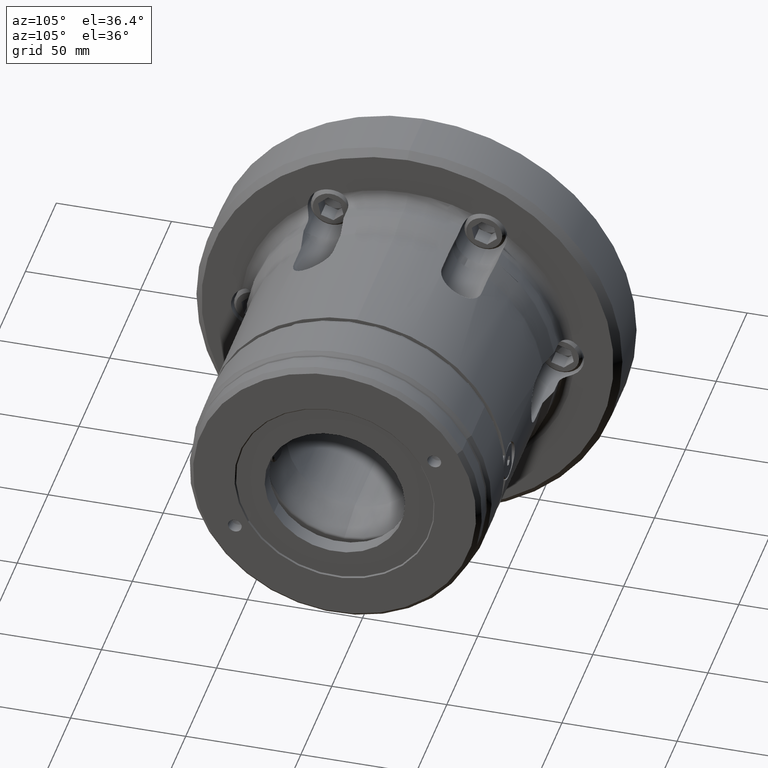
[diagram: clean part render]
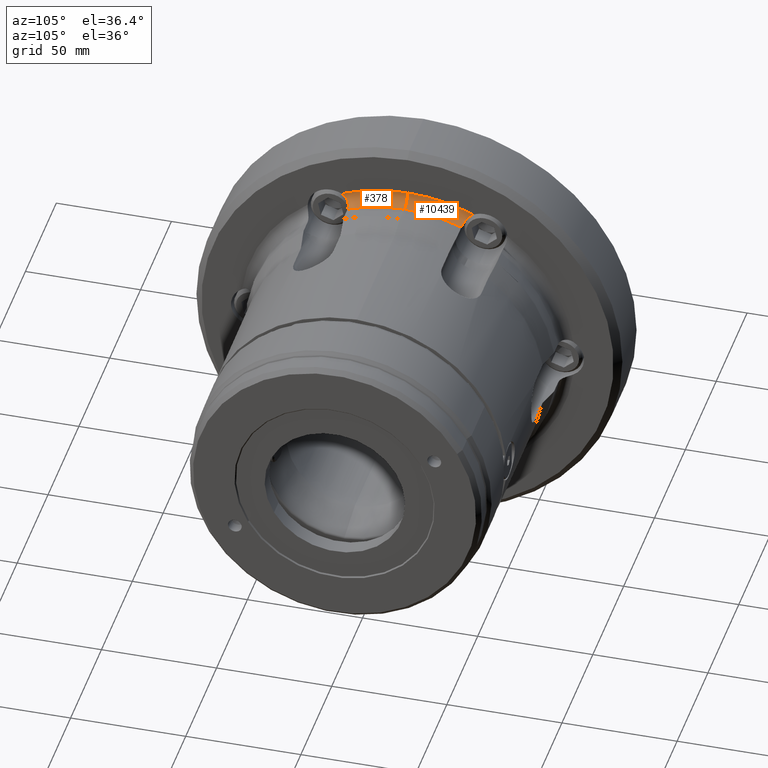
[diagram: same view with one multi-face feature highlighted, each face labeled with its STEP entity id]
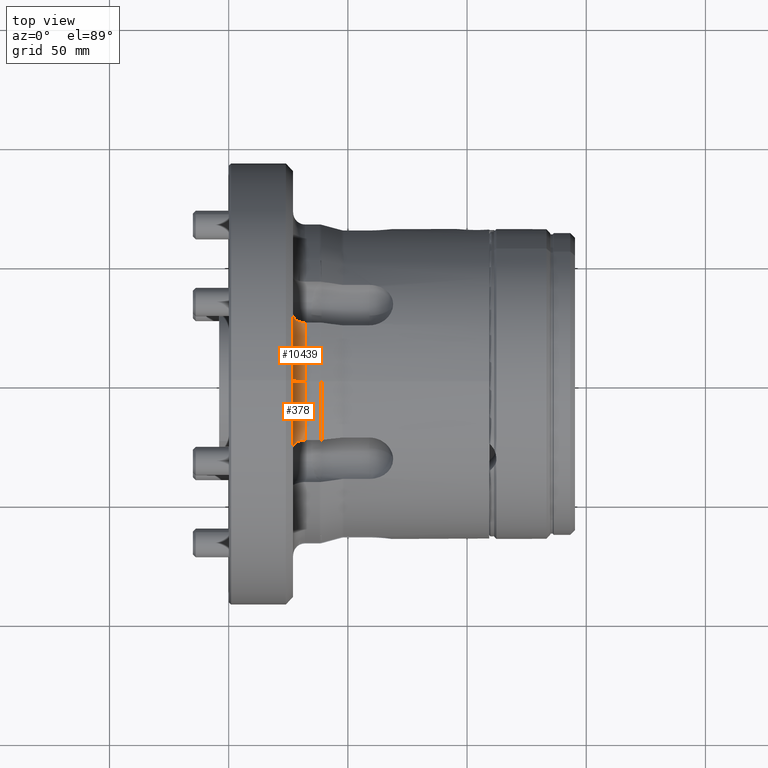
[diagram: same view with one multi-face feature highlighted, each face labeled with its STEP entity id]
A machine part, auxiliary view. The highlighted faces form ONE feature: a constant-radius fillet chain: 2 tangent blend faces with common blend radius 5 mm. The faces share edges in the B-rep.
A second angle (top view) of the same feature is appended — it is thin or edge-on in the first view.
Their STEP definitions:
[1] entity #378 (Torus):
#265 = CARTESIAN_POINT ( 'NONE',  ( 28.20177076734847400, -25.75867995182601400, 64.27456560706507100 ) ) ;
#378 = ADVANCED_FACE ( 'NONE', ( #7555 ), #10335, .F. ) ;
#1005 = AXIS2_PLACEMENT_3D ( 'NONE', #3114, #3071, #4931 ) ;
#1037 = CARTESIAN_POINT ( 'NONE',  ( 32.00000000000000000, 0.0000000000000000000, 0.0000000000000000000 ) ) ;
#1133 = CARTESIAN_POINT ( 'NONE',  ( 31.30454472536416000, -24.73593842011673500, 62.84358010782488400 ) ) ;
#1213 = CARTESIAN_POINT ( 'NONE',  ( 27.89509054676364000, -26.03968464414744600, 64.58882078295175700 ) ) ;
#1327 = DIRECTION ( 'NONE',  ( 0.0000000000000000000, -1.000000000000000000, 0.0000000000000000000 ) ) ;
#1393 = ORIENTED_EDGE ( 'NONE', *, *, #9867, .F. ) ;
#1977 = DIRECTION ( 'NONE',  ( 0.0000000000000000000, 0.0000000000000000000, 1.000000000000000000 ) ) ;
#2133 = CARTESIAN_POINT ( 'NONE',  ( 32.00000000000000000, -24.71746397891518000, 62.81159904389500800 ) ) ;
#2172 = CARTESIAN_POINT ( 'NONE',  ( 27.54791455152169600, -26.46399411699826100, 65.02169032671429200 ) ) ;
#2588 = ORIENTED_EDGE ( 'NONE', *, *, #5707, .F. ) ;
#3071 = DIRECTION ( 'NONE',  ( -1.000000000000000000, -0.0000000000000000000, -0.0000000000000000000 ) ) ;
#3075 = CARTESIAN_POINT ( 'NONE',  ( 30.29125802549608800, -24.86781073366849200, 63.06227732090958000 ) ) ;
#3114 = CARTESIAN_POINT ( 'NONE',  ( 32.00000000000000000, 0.0000000000000000000, 0.0000000000000000000 ) ) ;
#3117 = CARTESIAN_POINT ( 'NONE',  ( 27.25084032830565000, -27.07971057027833300, 65.55561487537553900 ) ) ;
#3278 = CARTESIAN_POINT ( 'NONE',  ( 27.00000000000000400, 0.0000000000000000000, 0.0000000000000000000 ) ) ;
#3714 = B_SPLINE_CURVE_WITH_KNOTS ( 'NONE', 3,
 ( #2133, #11324, #1133, #8552, #3075, #9494, #3991, #10451, #4894, #11365, #5844, #265, #6741, #1213, #7665, #2172, #8594, #3117, #9538, #4033, #10492, #4934, #11406, #5881 ),
 .UNSPECIFIED., .F., .F.,
 ( 4, 2, 2, 2, 2, 2, 2, 2, 2, 2, 2, 4 ),
 ( 1.971937660582398000E-007, 0.001037991745047884800, 0.002075786296329701300, 0.003113580847611517800, 0.003632478123252418900, 0.004151375398893319100, 0.004670272674534219800, 0.005189169950175121300, 0.006226964501456894900, 0.006745861777097795500, 0.007264759052738694500, 0.008302553604020516600 ),
 .UNSPECIFIED. ) ;
#3754 = VERTEX_POINT ( 'NONE', #12008 ) ;
#3991 = CARTESIAN_POINT ( 'NONE',  ( 29.36045259790385100, -25.11980193021982900, 63.44782431603496100 ) ) ;
#4033 = CARTESIAN_POINT ( 'NONE',  ( 27.12712057540984400, -27.48480516863607200, 65.86502907398787000 ) ) ;
#4178 = DIRECTION ( 'NONE',  ( 0.0000000000000000000, 0.0000000000000000000, 1.000000000000000000 ) ) ;
#4573 = EDGE_LOOP ( 'NONE', ( #6149, #1393, #2588, #11588 ) ) ;
#4660 = AXIS2_PLACEMENT_3D ( 'NONE', #6837, #1327, #7768 ) ;
#4894 = CARTESIAN_POINT ( 'NONE',  ( 28.80462763644668600, -25.36946505673230200, 63.79091625006412900 ) ) ;
#4931 = DIRECTION ( 'NONE',  ( 0.0000000000000000000, 0.0000000000000000000, 1.000000000000000000 ) ) ;
#4934 = CARTESIAN_POINT ( 'NONE',  ( 27.02235733912581500, -28.05118222939613300, 66.25155472628891600 ) ) ;
#5707 = EDGE_CURVE ( 'NONE', #8735, #8711, #3714, .T. ) ;
#5844 = CARTESIAN_POINT ( 'NONE',  ( 28.42904382400623900, -25.59161248456588200, 64.07455227281336400 ) ) ;
#5881 = CARTESIAN_POINT ( 'NONE',  ( 27.00000000000000400, -28.65877936728718800, 66.59522779580609600 ) ) ;
#6149 = ORIENTED_EDGE ( 'NONE', *, *, #10353, .F. ) ;
#6493 = AXIS2_PLACEMENT_3D ( 'NONE', #1037, #7482, #1977 ) ;
#6741 = CARTESIAN_POINT ( 'NONE',  ( 28.09499267393613300, -25.84807050184107900, 64.37762137695349900 ) ) ;
#6837 = CARTESIAN_POINT ( 'NONE',  ( 32.00000000000000000, 0.0000000000000000000, 72.50000000000001400 ) ) ;
#6952 = AXIS2_PLACEMENT_3D ( 'NONE', #3278, #9712, #4178 ) ;
#7180 = CARTESIAN_POINT ( 'NONE',  ( 27.00000000000000400, 0.0000000000000000000, 72.50000000000001400 ) ) ;
#7307 = CIRCLE ( 'NONE', #6952, 72.50000000000001400 ) ;
#7482 = DIRECTION ( 'NONE',  ( -1.000000000000000000, -0.0000000000000000000, -0.0000000000000000000 ) ) ;
#7555 = FACE_OUTER_BOUND ( 'NONE', #4573, .T. ) ;
#7665 = CARTESIAN_POINT ( 'NONE',  ( 27.80167041834776100, -26.14244011050439200, 64.69745412462401600 ) ) ;
#7768 = DIRECTION ( 'NONE',  ( 0.0000000000000000000, 0.0000000000000000000, -1.000000000000000000 ) ) ;
#7822 = EDGE_CURVE ( 'NONE', #8735, #3754, #9818, .T. ) ;
#8306 = CARTESIAN_POINT ( 'NONE',  ( 27.00000000000000400, -28.65877936728718800, 66.59522779580609600 ) ) ;
#8431 = CIRCLE ( 'NONE', #4660, 5.000000000000004400 ) ;
#8552 = CARTESIAN_POINT ( 'NONE',  ( 30.62740125614273600, -24.81054725087464500, 62.96802838615241200 ) ) ;
#8594 = CARTESIAN_POINT ( 'NONE',  ( 27.41160549933610100, -26.69778761338555000, 65.23770325642958300 ) ) ;
#8711 = VERTEX_POINT ( 'NONE', #8306 ) ;
#8735 = VERTEX_POINT ( 'NONE', #11164 ) ;
#9494 = CARTESIAN_POINT ( 'NONE',  ( 29.65883439109900600, -25.02257640546639900, 63.30234297511808000 ) ) ;
#9538 = CARTESIAN_POINT ( 'NONE',  ( 27.20445721305496500, -27.21286829081632800, 65.66101462112169400 ) ) ;
#9712 = DIRECTION ( 'NONE',  ( -1.000000000000000000, -0.0000000000000000000, -0.0000000000000000000 ) ) ;
#9818 = CIRCLE ( 'NONE', #6493, 67.50000000000000000 ) ;
#9867 = EDGE_CURVE ( 'NONE', #8711, #11753, #7307, .T. ) ;
#10335 = TOROIDAL_SURFACE ( 'NONE', #1005, 72.50000000000001400, 5.000000000000000900 ) ;
#10353 = EDGE_CURVE ( 'NONE', #11753, #3754, #8431, .T. ) ;
#10451 = CARTESIAN_POINT ( 'NONE',  ( 28.94015019664581000, -25.30230534107060300, 63.70067937665431400 ) ) ;
#10492 = CARTESIAN_POINT ( 'NONE',  ( 27.09591166367441400, -27.62399491381825800, 65.96403635256999100 ) ) ;
#11164 = CARTESIAN_POINT ( 'NONE',  ( 32.00000000000000000, -24.71746397891518000, 62.81159904389500800 ) ) ;
#11324 = CARTESIAN_POINT ( 'NONE',  ( 31.64914678709825700, -24.71746397891518800, 62.81159904389503600 ) ) ;
#11365 = CARTESIAN_POINT ( 'NONE',  ( 28.54953724307011600, -25.51393651388711000, 63.97759212483183700 ) ) ;
#11406 = CARTESIAN_POINT ( 'NONE',  ( 27.00000000000063900, -28.35073308871080800, 66.43159304231808400 ) ) ;
#11588 = ORIENTED_EDGE ( 'NONE', *, *, #7822, .T. ) ;
#11753 = VERTEX_POINT ( 'NONE', #7180 ) ;
#12008 = CARTESIAN_POINT ( 'NONE',  ( 32.00000000000000000, 0.0000000000000000000, 67.50000000000000000 ) ) ;
[2] entity #10439 (Torus):
#547 = DIRECTION ( 'NONE',  ( 0.0000000000000000000, 0.0000000000000000000, 1.000000000000000000 ) ) ;
#686 = CARTESIAN_POINT ( 'NONE',  ( 27.12045809462630800, 27.48098288024749900, 65.86783920671823000 ) ) ;
#1279 = CARTESIAN_POINT ( 'NONE',  ( 29.65660441016771600, 25.02957947919591000, 63.31172612567542800 ) ) ;
#1327 = DIRECTION ( 'NONE',  ( 0.0000000000000000000, -1.000000000000000000, 0.0000000000000000000 ) ) ;
#1976 = CARTESIAN_POINT ( 'NONE',  ( 28.08062349619659800, 25.84853558816257600, 64.38184889543511200 ) ) ;
#2493 = CARTESIAN_POINT ( 'NONE',  ( 32.00000000000000000, 0.0000000000000000000, 0.0000000000000000000 ) ) ;
#2783 = AXIS2_PLACEMENT_3D ( 'NONE', #5381, #11845, #6315 ) ;
#2884 = CARTESIAN_POINT ( 'NONE',  ( 32.00000000000000000, 24.71746397891649800, 62.81159904389449600 ) ) ;
#3386 = CARTESIAN_POINT ( 'NONE',  ( 28.42363769659155200, 25.59520192339395800, 64.07898977534462400 ) ) ;
#3478 = CARTESIAN_POINT ( 'NONE',  ( 28.80122610272535900, 25.37122720760206500, 63.79325259504639700 ) ) ;
#3628 = B_SPLINE_CURVE_WITH_KNOTS ( 'NONE', 3,
 ( #3834, #7916, #6998, #686, #8338, #4770, #4590, #8869, #1976, #3386, #6914, #3478, #7864, #8636, #11921, #1279, #9932, #4034, #4588, #5749, #5169, #11012 ),
 .UNSPECIFIED., .F., .F.,
 ( 4, 2, 2, 2, 2, 2, 2, 2, 2, 2, 4 ),
 ( 0.02912168559790560100, 0.03015741598139268900, 0.03119314636487978100, 0.03222887674836687200, 0.03326460713185396000, 0.03378247232359750400, 0.03430033751534104800, 0.03481820270708459200, 0.03533606789882813600, 0.03637179828231523700, 0.03740752866580233900 ),
 .UNSPECIFIED. ) ;
#3754 = VERTEX_POINT ( 'NONE', #12008 ) ;
#3834 = CARTESIAN_POINT ( 'NONE',  ( 27.00000000000000400, 28.65877936730302600, 66.59522779581317300 ) ) ;
#4034 = CARTESIAN_POINT ( 'NONE',  ( 30.28873505712023500, 24.86824977827094700, 63.06299942544239900 ) ) ;
#4191 = AXIS2_PLACEMENT_3D ( 'NONE', #9820, #4287, #10751 ) ;
#4272 = CIRCLE ( 'NONE', #2783, 67.50000000000000000 ) ;
#4287 = DIRECTION ( 'NONE',  ( -1.000000000000000000, -0.0000000000000000000, -0.0000000000000000000 ) ) ;
#4567 = ORIENTED_EDGE ( 'NONE', *, *, #8981, .F. ) ;
#4588 = CARTESIAN_POINT ( 'NONE',  ( 30.61753476888021200, 24.81195552910024900, 62.97035232709957600 ) ) ;
#4590 = CARTESIAN_POINT ( 'NONE',  ( 27.54773279642391200, 26.46456799272830900, 65.02215854339328900 ) ) ;
#4660 = AXIS2_PLACEMENT_3D ( 'NONE', #6837, #1327, #7768 ) ;
#4717 = EDGE_CURVE ( 'NONE', #7600, #5300, #3628, .T. ) ;
#4770 = CARTESIAN_POINT ( 'NONE',  ( 27.40854486875258500, 26.70386633291360200, 65.24304528166362600 ) ) ;
#4813 = ORIENTED_EDGE ( 'NONE', *, *, #4717, .F. ) ;
#5169 = CARTESIAN_POINT ( 'NONE',  ( 31.64910184117055500, 24.71746397891641700, 62.81159904389435400 ) ) ;
#5300 = VERTEX_POINT ( 'NONE', #2884 ) ;
#5381 = CARTESIAN_POINT ( 'NONE',  ( 32.00000000000000000, 0.0000000000000000000, 0.0000000000000000000 ) ) ;
#5749 = CARTESIAN_POINT ( 'NONE',  ( 31.29829833083164200, 24.73631299735610500, 62.84422940332655100 ) ) ;
#6154 = DIRECTION ( 'NONE',  ( -1.000000000000000000, -0.0000000000000000000, -0.0000000000000000000 ) ) ;
#6315 = DIRECTION ( 'NONE',  ( 0.0000000000000000000, 0.0000000000000000000, 1.000000000000000000 ) ) ;
#6787 = ORIENTED_EDGE ( 'NONE', *, *, #10353, .T. ) ;
#6837 = CARTESIAN_POINT ( 'NONE',  ( 32.00000000000000000, 0.0000000000000000000, 72.50000000000001400 ) ) ;
#6914 = CARTESIAN_POINT ( 'NONE',  ( 28.54620772917781900, 25.51599091141933300, 63.98018566803434500 ) ) ;
#6998 = CARTESIAN_POINT ( 'NONE',  ( 27.02193678286959500, 28.05407829773763600, 66.25344661026382200 ) ) ;
#7180 = CARTESIAN_POINT ( 'NONE',  ( 27.00000000000000400, 0.0000000000000000000, 72.50000000000001400 ) ) ;
#7573 = FACE_OUTER_BOUND ( 'NONE', #8601, .T. ) ;
#7600 = VERTEX_POINT ( 'NONE', #8382 ) ;
#7768 = DIRECTION ( 'NONE',  ( 0.0000000000000000000, 0.0000000000000000000, -1.000000000000000000 ) ) ;
#7864 = CARTESIAN_POINT ( 'NONE',  ( 28.93439561373638500, 25.30508477185993100, 63.70443502187031700 ) ) ;
#7916 = CARTESIAN_POINT ( 'NONE',  ( 26.99999999999999600, 28.35359427644877100, 66.43311291054091300 ) ) ;
#8338 = CARTESIAN_POINT ( 'NONE',  ( 27.19602478871297200, 27.21115005555645200, 65.66473688788816800 ) ) ;
#8382 = CARTESIAN_POINT ( 'NONE',  ( 27.00000000000000400, 28.65877936730302600, 66.59522779581317300 ) ) ;
#8431 = CIRCLE ( 'NONE', #4660, 5.000000000000004400 ) ;
#8601 = EDGE_LOOP ( 'NONE', ( #4567, #6787, #10937, #4813 ) ) ;
#8636 = CARTESIAN_POINT ( 'NONE',  ( 29.21196245203755400, 25.18401247166940500, 63.53687730178791800 ) ) ;
#8869 = CARTESIAN_POINT ( 'NONE',  ( 27.88359507611270900, 26.03828627085399800, 64.59254101680404900 ) ) ;
#8981 = EDGE_CURVE ( 'NONE', #11753, #7600, #9490, .T. ) ;
#9490 = CIRCLE ( 'NONE', #4191, 72.50000000000001400 ) ;
#9820 = CARTESIAN_POINT ( 'NONE',  ( 27.00000000000000400, 0.0000000000000000000, 0.0000000000000000000 ) ) ;
#9932 = CARTESIAN_POINT ( 'NONE',  ( 29.81302862594985800, 24.98493289428349200, 63.24393115260575400 ) ) ;
#10067 = TOROIDAL_SURFACE ( 'NONE', #10252, 72.50000000000001400, 5.000000000000000900 ) ;
#10252 = AXIS2_PLACEMENT_3D ( 'NONE', #2493, #6154, #547 ) ;
#10353 = EDGE_CURVE ( 'NONE', #11753, #3754, #8431, .T. ) ;
#10439 = ADVANCED_FACE ( 'NONE', ( #7573 ), #10067, .F. ) ;
#10515 = EDGE_CURVE ( 'NONE', #3754, #5300, #4272, .T. ) ;
#10751 = DIRECTION ( 'NONE',  ( 0.0000000000000000000, 0.0000000000000000000, 1.000000000000000000 ) ) ;
#10937 = ORIENTED_EDGE ( 'NONE', *, *, #10515, .T. ) ;
#11012 = CARTESIAN_POINT ( 'NONE',  ( 32.00000000000000000, 24.71746397891649800, 62.81159904389449600 ) ) ;
#11753 = VERTEX_POINT ( 'NONE', #7180 ) ;
#11845 = DIRECTION ( 'NONE',  ( -1.000000000000000000, -0.0000000000000000000, -0.0000000000000000000 ) ) ;
#11921 = CARTESIAN_POINT ( 'NONE',  ( 29.35635876741855200, 25.12908381685419500, 63.45813461434059400 ) ) ;
#12008 = CARTESIAN_POINT ( 'NONE',  ( 32.00000000000000000, 0.0000000000000000000, 67.50000000000000000 ) ) ;